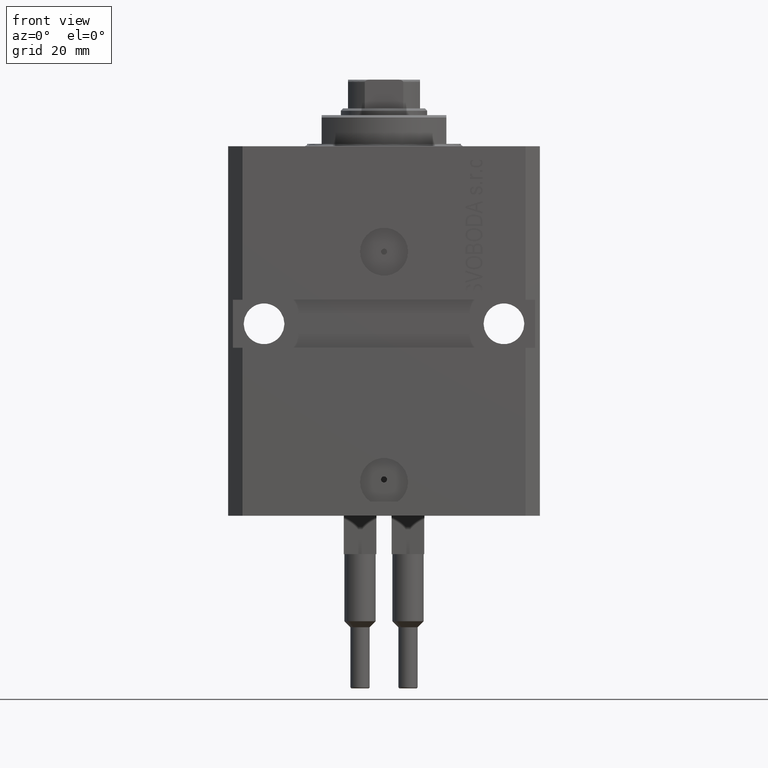
[diagram: clean part render]
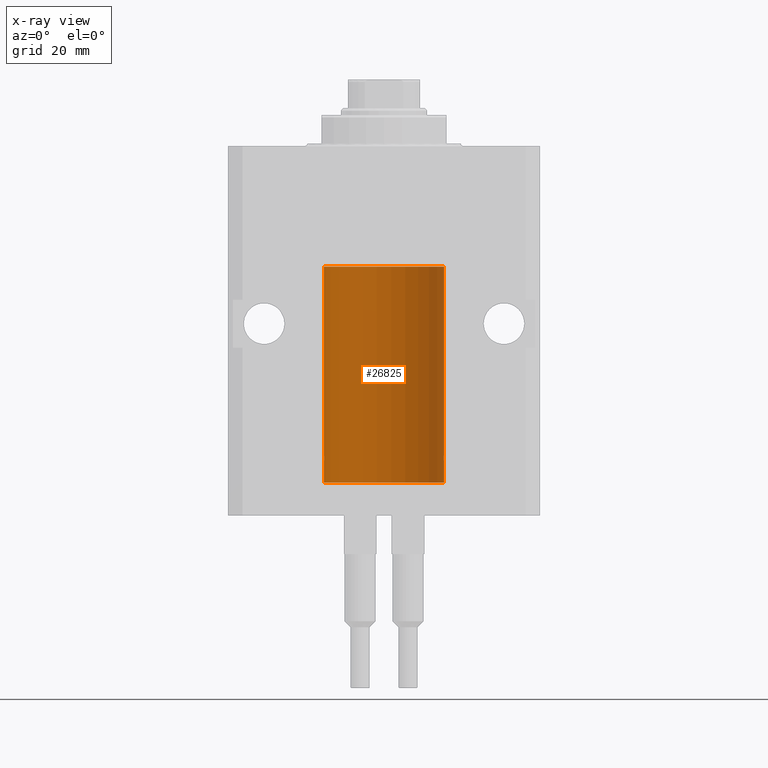
[diagram: x-ray — body ghosted, one internal face saturated and labeled with its STEP entity id]
A machine part, front view, then the same camera in x-ray: the body is ghosted and one INTERNAL B-rep face — a face not visible from any outside direction — is saturated and labeled: STEP entity #26825.
In plain terms, the highlighted cylindrical surface (partial cylindrical patch) has radius 12.5 mm, axis along (0, 0, 1).
Its self-contained STEP definition (entity closure, byte-faithful):
#598 = CARTESIAN_POINT ( 'NONE',  ( -12.50000000000017941, 3.883381774819353300E-13, -65.62500000000359535 ) ) ;
#987 = CARTESIAN_POINT ( 'NONE',  ( 12.48810305280568222, 0.5461368461738485003, -64.68525466142676805 ) ) ;
#1072 = CARTESIAN_POINT ( 'NONE',  ( -12.48436376893640087, 0.6250290278979918623, -65.08132082824472775 ) ) ;
#1325 = CARTESIAN_POINT ( 'NONE',  ( -12.48436813453758454, 0.6249418250771179295, -64.83668996798921569 ) ) ;
#1481 = CARTESIAN_POINT ( 'NONE',  ( 12.50000000000017941, 3.868073689162038701E-13, -64.37499999999640465 ) ) ;
#2510 = EDGE_CURVE ( 'NONE', #34868, #32876, #40999, .T. ) ;
#2606 = CARTESIAN_POINT ( 'NONE',  ( 12.49421963472024721, 0.3844519291903572555, -65.49947303647046226 ) ) ;
#3024 = CIRCLE ( 'NONE', #26533, 12.50000000000000000 ) ;
#3423 = DIRECTION ( 'NONE',  ( -0.000000000000000000, -0.000000000000000000, 1.000000000000000000 ) ) ;
#3611 = CARTESIAN_POINT ( 'NONE',  ( 12.50000000000000000, 0.000000000000000000, -25.10000000000000142 ) ) ;
#3779 = EDGE_CURVE ( 'NONE', #23352, #22719, #39275, .T. ) ;
#3826 = EDGE_CURVE ( 'NONE', #42629, #40144, #30960, .T. ) ;
#4367 = EDGE_CURVE ( 'NONE', #26250, #40144, #27070, .T. ) ;
#4489 = CARTESIAN_POINT ( 'NONE',  ( 12.50000000000017941, 3.868073689162038701E-13, -64.37499999999640465 ) ) ;
#5248 = CARTESIAN_POINT ( 'NONE',  ( -12.49625855304193855, 0.3150454781038045660, -64.45402800297485157 ) ) ;
#6052 = CARTESIAN_POINT ( 'NONE',  ( 12.49625698805481022, 0.3151108292486944906, -65.54593695688173227 ) ) ;
#6778 = CARTESIAN_POINT ( 'NONE',  ( 12.48436522214885969, 0.6250000000001505462, -65.16312747540307271 ) ) ;
#7921 = CARTESIAN_POINT ( 'NONE',  ( 12.50000000000000000, 0.000000000000000000, -70.09999999999999432 ) ) ;
#8853 = CARTESIAN_POINT ( 'NONE',  ( 12.50000000000000000, 0.000000000000000000, -70.09999999999999432 ) ) ;
#9641 = ORIENTED_EDGE ( 'NONE', *, *, #27676, .T. ) ;
#9704 = ORIENTED_EDGE ( 'NONE', *, *, #4367, .F. ) ;
#9723 = EDGE_CURVE ( 'NONE', #22719, #37923, #13718, .T. ) ;
#10035 = VECTOR ( 'NONE', #3423, 1000.000000000000000 ) ;
#10450 = DIRECTION ( 'NONE',  ( 0.000000000000000000, 0.000000000000000000, 1.000000000000000000 ) ) ;
#10652 = CARTESIAN_POINT ( 'NONE',  ( -12.50000000000000000, 1.530808498934191127E-15, -25.10000000000000142 ) ) ;
#11247 = DIRECTION ( 'NONE',  ( 1.000000000000000000, 0.000000000000000000, 0.000000000000000000 ) ) ;
#11623 = ORIENTED_EDGE ( 'NONE', *, *, #35214, .T. ) ;
#12112 = CARTESIAN_POINT ( 'NONE',  ( -12.49631005746706158, 0.3253680783018496059, -65.55856740465392818 ) ) ;
#12358 = CARTESIAN_POINT ( 'NONE',  ( -12.49999999999999289, 0.1631761135151231223, -65.62499999999984368 ) ) ;
#12564 = CARTESIAN_POINT ( 'NONE',  ( -12.50000000000000000, 1.530808498934191127E-15, -70.09999999999999432 ) ) ;
#13124 = DIRECTION ( 'NONE',  ( 1.000000000000000000, 0.000000000000000000, 0.000000000000000000 ) ) ;
#13622 = ORIENTED_EDGE ( 'NONE', *, *, #3826, .T. ) ;
#13634 = CARTESIAN_POINT ( 'NONE',  ( 12.49915742890631876, 0.1636982395582385896, -65.60872397847025184 ) ) ;
#13718 = B_SPLINE_CURVE_WITH_KNOTS ( 'NONE', 3,
 ( #31899, #16203, #20366, #987, #35095, #24046, #27732, #1481 ),
 .UNSPECIFIED., .F., .F.,
 ( 4, 2, 2, 4 ),
 ( 0.0009773924225142606621, 0.001221629287363811033, 0.001465866152213361404, 0.001954339881912461711 ),
 .UNSPECIFIED. ) ;
#14441 = FACE_OUTER_BOUND ( 'NONE', #18339, .T. ) ;
#14922 = CARTESIAN_POINT ( 'NONE',  ( 0.000000000000000000, 0.000000000000000000, -70.09999999999999432 ) ) ;
#15568 = EDGE_CURVE ( 'NONE', #20434, #34868, #3024, .T. ) ;
#16203 = CARTESIAN_POINT ( 'NONE',  ( 12.48436522214888100, 0.6249999999996834754, -64.91847339462351840 ) ) ;
#18339 = EDGE_LOOP ( 'NONE', ( #26405, #23157, #9641, #26074, #47345, #27342, #13622, #9704, #11623 ) ) ;
#18900 = CARTESIAN_POINT ( 'NONE',  ( -12.50000000000000000, 1.530808498934191127E-15, -70.09999999999999432 ) ) ;
#19241 = CARTESIAN_POINT ( 'NONE',  ( -12.49915784441386890, 0.1636601911727942615, -64.39126818989430490 ) ) ;
#19479 = CARTESIAN_POINT ( 'NONE',  ( -12.49011732893843707, 0.5003763274120244242, -65.38348111289288056 ) ) ;
#19645 = LINE ( 'NONE', #8853, #37832 ) ;
#20184 = DIRECTION ( 'NONE',  ( -0.000000000000000000, -0.000000000000000000, 1.000000000000000000 ) ) ;
#20204 = CARTESIAN_POINT ( 'NONE',  ( -12.49422197749724539, 0.3843754434364305972, -64.50047099568097053 ) ) ;
#20366 = CARTESIAN_POINT ( 'NONE',  ( 12.48520578595314845, 0.6087855079133740466, -64.83656717509344958 ) ) ;
#20434 = VERTEX_POINT ( 'NONE', #7921 ) ;
#22081 = LINE ( 'NONE', #37035, #10035 ) ;
#22719 = VERTEX_POINT ( 'NONE', #23407 ) ;
#23157 = ORIENTED_EDGE ( 'NONE', *, *, #15568, .F. ) ;
#23164 = CARTESIAN_POINT ( 'NONE',  ( -12.50000000000017941, 3.883381774819353300E-13, -65.62500000000359535 ) ) ;
#23352 = VERTEX_POINT ( 'NONE', #23904 ) ;
#23407 = CARTESIAN_POINT ( 'NONE',  ( 12.48436522214846711, 0.6250000000078848039, -64.99999999999923261 ) ) ;
#23904 = CARTESIAN_POINT ( 'NONE',  ( 12.50000000000000000, -1.836039810331332019E-15, -65.62500000000000000 ) ) ;
#24046 = CARTESIAN_POINT ( 'NONE',  ( 12.49631206032076136, 0.3252904079142934779, -64.44139700214927302 ) ) ;
#24655 = DIRECTION ( 'NONE',  ( 0.000000000000000000, 0.000000000000000000, 1.000000000000000000 ) ) ;
#24939 = CARTESIAN_POINT ( 'NONE',  ( 12.49999999999999822, 0.08262306818362624705, -65.62500000000000000 ) ) ;
#26074 = ORIENTED_EDGE ( 'NONE', *, *, #3779, .T. ) ;
#26250 = VERTEX_POINT ( 'NONE', #38922 ) ;
#26297 = VECTOR ( 'NONE', #20184, 1000.000000000000000 ) ;
#26405 = ORIENTED_EDGE ( 'NONE', *, *, #2510, .F. ) ;
#26517 = DIRECTION ( 'NONE',  ( -0.000000000000000000, -0.000000000000000000, 1.000000000000000000 ) ) ;
#26533 = AXIS2_PLACEMENT_3D ( 'NONE', #35708, #24655, #13124 ) ;
#26825 = ADVANCED_FACE ( 'NONE', ( #14441 ), #29428, .F. ) ;
#27070 = LINE ( 'NONE', #38854, #26297 ) ;
#27342 = ORIENTED_EDGE ( 'NONE', *, *, #44835, .T. ) ;
#27500 = DIRECTION ( 'NONE',  ( -0.000000000000000000, -0.000000000000000000, 1.000000000000000000 ) ) ;
#27576 = CARTESIAN_POINT ( 'NONE',  ( -12.48520330846398174, 0.6088355886774118320, -65.16325431852561678 ) ) ;
#27676 = EDGE_CURVE ( 'NONE', #20434, #23352, #19645, .T. ) ;
#27732 = CARTESIAN_POINT ( 'NONE',  ( 12.49999999999999822, 0.1631389616600901760, -64.37500000000022737 ) ) ;
#29428 = CYLINDRICAL_SURFACE ( 'NONE', #29956, 12.50000000000000000 ) ;
#29956 = AXIS2_PLACEMENT_3D ( 'NONE', #14922, #44875, #11247 ) ;
#30960 = CIRCLE ( 'NONE', #41930, 12.50000000000000000 ) ;
#31899 = CARTESIAN_POINT ( 'NONE',  ( 12.48436522214846711, 0.6250000000078848039, -64.99999999999923261 ) ) ;
#32442 = VECTOR ( 'NONE', #26517, 1000.000000000000000 ) ;
#32790 = CARTESIAN_POINT ( 'NONE',  ( 12.48436522214846711, 0.6250000000078848039, -64.99999999999923261 ) ) ;
#32876 = VERTEX_POINT ( 'NONE', #598 ) ;
#33030 = CARTESIAN_POINT ( 'NONE',  ( 12.50000000000000000, -1.836039810331332019E-15, -65.62500000000000000 ) ) ;
#34868 = VERTEX_POINT ( 'NONE', #12564 ) ;
#35095 = CARTESIAN_POINT ( 'NONE',  ( 12.49012055744648997, 0.5002956126656082914, -64.61641710202404454 ) ) ;
#35214 = EDGE_CURVE ( 'NONE', #26250, #32876, #44512, .T. ) ;
#35708 = CARTESIAN_POINT ( 'NONE',  ( 0.000000000000000000, 0.000000000000000000, -70.09999999999999432 ) ) ;
#36467 = CARTESIAN_POINT ( 'NONE',  ( 12.48809900631782099, 0.5573988467445673001, -65.32640147935475738 ) ) ;
#37035 = CARTESIAN_POINT ( 'NONE',  ( 12.50000000000000000, 0.000000000000000000, -70.09999999999999432 ) ) ;
#37832 = VECTOR ( 'NONE', #27500, 1000.000000000000000 ) ;
#37923 = VERTEX_POINT ( 'NONE', #4489 ) ;
#38624 = CARTESIAN_POINT ( 'NONE',  ( -12.48810268015257741, 0.5573155909661291485, -64.67347410093869087 ) ) ;
#38854 = CARTESIAN_POINT ( 'NONE',  ( -12.50000000000000000, 1.530808498934191127E-15, -70.09999999999999432 ) ) ;
#38922 = CARTESIAN_POINT ( 'NONE',  ( -12.50000000000000000, -1.050566418211748297E-14, -64.37500000000000000 ) ) ;
#39116 = CARTESIAN_POINT ( 'NONE',  ( -12.50000000000000000, -1.050566418211748297E-14, -64.37500000000000000 ) ) ;
#39275 = B_SPLINE_CURVE_WITH_KNOTS ( 'NONE', 3,
 ( #33030, #24939, #13634, #6052, #2606, #36467, #6778, #32790 ),
 .UNSPECIFIED., .F., .F.,
 ( 4, 2, 2, 4 ),
 ( 1.784246692340212412E-18, 0.0002443481056285665750, 0.0004886962112571313068, 0.0009773924225142606621 ),
 .UNSPECIFIED. ) ;
#40144 = VERTEX_POINT ( 'NONE', #10652 ) ;
#40999 = LINE ( 'NONE', #18900, #32442 ) ;
#41826 = CARTESIAN_POINT ( 'NONE',  ( -12.49999999999999645, 0.08260426088728482774, -64.37499999999998579 ) ) ;
#41930 = AXIS2_PLACEMENT_3D ( 'NONE', #44073, #10450, #47987 ) ;
#42544 = CARTESIAN_POINT ( 'NONE',  ( -12.48809959379011580, 0.5462151254764967545, -65.31461370481615347 ) ) ;
#42629 = VERTEX_POINT ( 'NONE', #3611 ) ;
#44073 = CARTESIAN_POINT ( 'NONE',  ( 0.000000000000000000, 0.000000000000000000, -25.10000000000000142 ) ) ;
#44512 = B_SPLINE_CURVE_WITH_KNOTS ( 'NONE', 3,
 ( #39116, #41826, #19241, #5248, #20204, #38624, #1325, #1072, #27576, #42544, #19479, #12112, #12358, #23164 ),
 .UNSPECIFIED., .F., .F.,
 ( 4, 2, 2, 2, 2, 2, 4 ),
 ( 3.452213508042194616E-18, 0.0002442924852390797774, 0.0004885849704781561938, 0.0009771699409563384085, 0.001221462426195450224, 0.001465754911434562040, 0.001954339881912785671 ),
 .UNSPECIFIED. ) ;
#44835 = EDGE_CURVE ( 'NONE', #37923, #42629, #22081, .T. ) ;
#44875 = DIRECTION ( 'NONE',  ( -0.000000000000000000, -0.000000000000000000, 1.000000000000000000 ) ) ;
#47345 = ORIENTED_EDGE ( 'NONE', *, *, #9723, .T. ) ;
#47987 = DIRECTION ( 'NONE',  ( 1.000000000000000000, 0.000000000000000000, 0.000000000000000000 ) ) ;